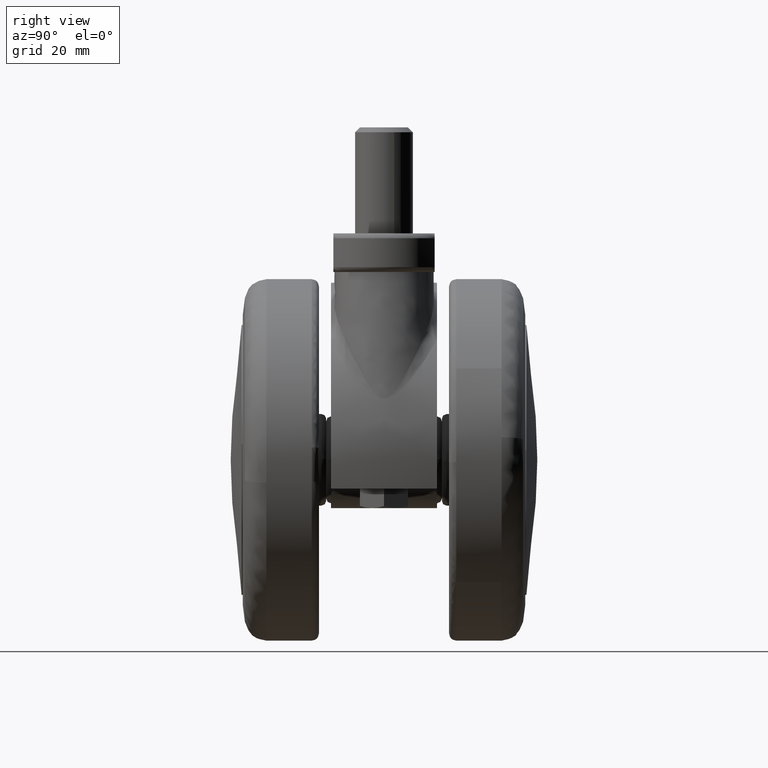
[diagram: clean part render]
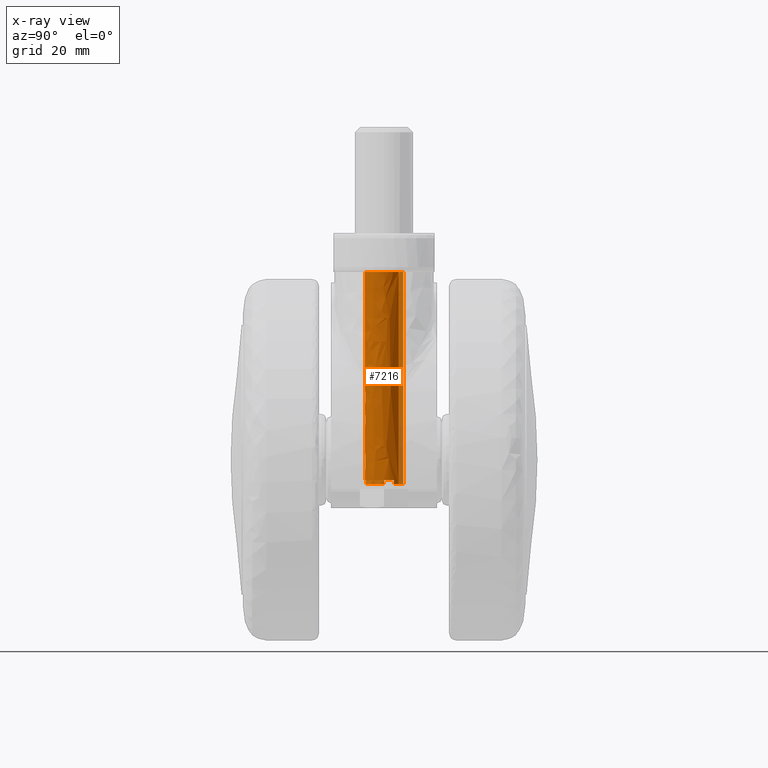
[diagram: x-ray — body ghosted, one internal face saturated and labeled with its STEP entity id]
A machine part, right view, then the same camera in x-ray: the body is ghosted and one INTERNAL B-rep face — a face not visible from any outside direction — is saturated and labeled: STEP entity #7216.
In plain terms, the highlighted face is a freeform B-spline surface patch.
Its self-contained STEP definition (entity closure, byte-faithful):
#6980=CARTESIAN_POINT('',(22.603179484488194,3.037014417407290,40.100000000000001));
#6981=CARTESIAN_POINT('',(23.920511686677187,1.907862002674398,40.100000000000009));
#6982=CARTESIAN_POINT('',(23.996192886327432,0.174477549461344,40.100000000000009));
#6983=CARTESIAN_POINT('',(24.170670435788775,-3.821715336866087,40.100000000000001));
#6984=CARTESIAN_POINT('',(20.174477549461340,-3.996192886327430,40.100000000000009));
#6985=CARTESIAN_POINT('',(16.178284663133912,-4.170670435788773,40.100000000000001));
#6986=CARTESIAN_POINT('',(16.003807113672568,-0.174477549461344,40.100000000000009));
#6987=CARTESIAN_POINT('',(15.829329564211232,3.821715336866087,40.100000000000001));
#6988=CARTESIAN_POINT('',(19.825522450538660,3.996192886327430,40.100000000000009));
#6989=CARTESIAN_POINT('',(22.603179484488194,3.037014417407290,-6.127500000000005));
#6990=CARTESIAN_POINT('',(23.920511686677187,1.907862002674398,-6.127500000000006));
#6991=CARTESIAN_POINT('',(23.996192886327432,0.174477549461344,-6.127500000000005));
#6992=CARTESIAN_POINT('',(24.170670435788775,-3.821715336866087,-6.127500000000005));
#6993=CARTESIAN_POINT('',(20.174477549461340,-3.996192886327430,-6.127500000000005));
#6994=CARTESIAN_POINT('',(16.178284663133912,-4.170670435788773,-6.127500000000005));
#6995=CARTESIAN_POINT('',(16.003807113672568,-0.174477549461344,-6.127500000000005));
#6996=CARTESIAN_POINT('',(15.829329564211232,3.821715336866087,-6.127500000000005));
#6997=CARTESIAN_POINT('',(19.825522450538660,3.996192886327430,-6.127500000000005));
#7005=(BOUNDED_SURFACE()B_SPLINE_SURFACE(2,1,((#6980,#6989),(#6981,#6990),(#6982,#6991),(#6983,#6992),(#6984,#6993),(#6985,#6994),(#6986,#6995),(#6987,#6996),(#6988,#6997)),.UNSPECIFIED.,.F.,.F.,.U.)B_SPLINE_SURFACE_WITH_KNOTS((3,2,2,2,3),(2,2),(0.0,3.446256838944149,10.073673836913670,16.701090834883189,23.328507832852701),(0.0,46.227500000000020),.UNSPECIFIED.)GEOMETRIC_REPRESENTATION_ITEM()RATIONAL_B_SPLINE_SURFACE(((0.853787705168325,0.853787705168325),(0.847695526217005,0.847695526217005),(1.0,1.0),(0.707106781186548,0.707106781186548),(1.0,1.0),(0.707106781186548,0.707106781186548),(1.0,1.0),(0.707106781186548,0.707106781186548),(1.0,1.0)))REPRESENTATION_ITEM('')SURFACE());
#7006=CARTESIAN_POINT('',(22.603179484484180,3.037014417410734,-4.999999999999999));
#7007=VERTEX_POINT('',#7006);
#7008=CARTESIAN_POINT('',(23.450066424360351,2.024115033169200,-5.0));
#7009=VERTEX_POINT('',#7008);
#7010=CARTESIAN_POINT('',(22.603179484484187,3.037014417410734,-4.999999999999999));
#7011=CARTESIAN_POINT('',(23.111367996836709,2.601420202902212,-5.000000000000001));
#7012=CARTESIAN_POINT('',(23.450066424360330,2.024115033169190,-5.0));
#7020=(BOUNDED_CURVE()B_SPLINE_CURVE(2,(#7010,#7011,#7012),.UNSPECIFIED.,.F.,.U.)B_SPLINE_CURVE_WITH_KNOTS((3,3),(0.838826426035904,1.0),.UNSPECIFIED.)CURVE()GEOMETRIC_REPRESENTATION_ITEM()RATIONAL_B_SPLINE_CURVE((0.942228882933247,0.957374106159129,1.0))REPRESENTATION_ITEM(''));
#7021=EDGE_CURVE('',#7007,#7009,#7020,.T.);
#7022=ORIENTED_EDGE('',*,*,#7021,.F.);
#7023=CARTESIAN_POINT('',(22.603176855445980,3.037016670889109,39.0));
#7024=VERTEX_POINT('',#7023);
#7025=CARTESIAN_POINT('',(22.603176855445980,3.037016670889109,39.0));
#7026=CARTESIAN_POINT('',(22.603179484484180,3.037014417410734,-4.999999999999999));
#7027=QUASI_UNIFORM_CURVE('',1,(#7025,#7026),.UNSPECIFIED.,.F.,.U.);
#7028=EDGE_CURVE('',#7024,#7007,#7027,.T.);
#7029=ORIENTED_EDGE('',*,*,#7028,.F.);
#7030=CARTESIAN_POINT('',(24.0,0.0,39.0));
#7031=VERTEX_POINT('',#7030);
#7032=CARTESIAN_POINT('',(24.0,0.0,39.0));
#7033=CARTESIAN_POINT('',(24.0,1.839730625046044,38.999999999999986));
#7034=CARTESIAN_POINT('',(22.603176855445973,3.037016670889109,38.999999999999993));
#7042=(BOUNDED_CURVE()B_SPLINE_CURVE(2,(#7032,#7033,#7034),.UNSPECIFIED.,.F.,.U.)B_SPLINE_CURVE_WITH_KNOTS((3,3),(0.0,0.136589111455534),.UNSPECIFIED.)CURVE()GEOMETRIC_REPRESENTATION_ITEM()RATIONAL_B_SPLINE_CURVE((1.0,0.839975901963677,0.854812198825391))REPRESENTATION_ITEM(''));
#7043=EDGE_CURVE('',#7031,#7024,#7042,.T.);
#7044=ORIENTED_EDGE('',*,*,#7043,.F.);
#7045=CARTESIAN_POINT('',(16.0,0.0,39.0));
#7046=VERTEX_POINT('',#7045);
#7047=CARTESIAN_POINT('',(16.0,0.0,39.0));
#7048=CARTESIAN_POINT('',(15.999999999999998,-4.000000000000000,39.000000000000007));
#7049=CARTESIAN_POINT('',(20.0,-4.0,39.0));
#7050=CARTESIAN_POINT('',(23.999999999999996,-4.000000000000000,39.000000000000007));
#7051=CARTESIAN_POINT('',(24.0,0.0,39.0));
#7059=(BOUNDED_CURVE()B_SPLINE_CURVE(2,(#7047,#7048,#7049,#7050,#7051),.UNSPECIFIED.,.F.,.U.)B_SPLINE_CURVE_WITH_KNOTS((3,2,3),(0.500000000000000,0.750000000000000,1.0),.UNSPECIFIED.)CURVE()GEOMETRIC_REPRESENTATION_ITEM()RATIONAL_B_SPLINE_CURVE((1.0,0.707106781186548,1.0,0.707106781186548,1.0))REPRESENTATION_ITEM(''));
#7060=EDGE_CURVE('',#7046,#7031,#7059,.T.);
#7061=ORIENTED_EDGE('',*,*,#7060,.F.);
#7062=CARTESIAN_POINT('',(19.825522450356001,3.996192886319456,39.0));
#7063=VERTEX_POINT('',#7062);
#7064=CARTESIAN_POINT('',(19.825522450356001,3.996192886319455,39.0));
#7065=CARTESIAN_POINT('',(16.000000000000004,3.829166968668858,39.000000000000007));
#7066=CARTESIAN_POINT('',(16.0,0.0,39.0));
#7074=(BOUNDED_CURVE()B_SPLINE_CURVE(2,(#7064,#7065,#7066),.UNSPECIFIED.,.F.,.U.)B_SPLINE_CURVE_WITH_KNOTS((3,3),(0.257645461446137,0.500000000000000),.UNSPECIFIED.)CURVE()GEOMETRIC_REPRESENTATION_ITEM()RATIONAL_B_SPLINE_CURVE((0.982633425852628,0.716063996435640,1.0))REPRESENTATION_ITEM(''));
#7075=EDGE_CURVE('',#7063,#7046,#7074,.T.);
#7076=ORIENTED_EDGE('',*,*,#7075,.F.);
#7077=CARTESIAN_POINT('',(19.825522450530720,3.996192886327084,-4.999999999999999));
#7078=VERTEX_POINT('',#7077);
#7079=CARTESIAN_POINT('',(19.825522450356001,3.996192886319456,39.0));
#7080=CARTESIAN_POINT('',(19.825522450530720,3.996192886327084,-4.999999999999999));
#7081=QUASI_UNIFORM_CURVE('',1,(#7079,#7080),.UNSPECIFIED.,.F.,.U.);
#7082=EDGE_CURVE('',#7063,#7078,#7081,.T.);
#7083=ORIENTED_EDGE('',*,*,#7082,.T.);
#7084=CARTESIAN_POINT('',(16.549933575639699,2.024115033169200,-5.0));
#7085=VERTEX_POINT('',#7084);
#7086=CARTESIAN_POINT('',(16.549933575639681,2.024115033169212,-5.0));
#7087=CARTESIAN_POINT('',(17.651234169029905,3.901261409793176,-4.999999999999999));
#7088=CARTESIAN_POINT('',(19.825522450530720,3.996192886327084,-4.999999999999999));
#7096=(BOUNDED_CURVE()B_SPLINE_CURVE(2,(#7086,#7087,#7088),.UNSPECIFIED.,.F.,.U.)B_SPLINE_CURVE_WITH_KNOTS((3,3),(0.0,0.478173893076030),.UNSPECIFIED.)CURVE()GEOMETRIC_REPRESENTATION_ITEM()RATIONAL_B_SPLINE_CURVE((1.0,0.873536404868235,0.988959168202658))REPRESENTATION_ITEM(''));
#7097=EDGE_CURVE('',#7085,#7078,#7096,.T.);
#7098=ORIENTED_EDGE('',*,*,#7097,.F.);
#7099=CARTESIAN_POINT('',(16.549933575639699,2.024115033169200,-4.200000000000000));
#7100=VERTEX_POINT('',#7099);
#7101=CARTESIAN_POINT('',(16.549933575639699,2.024115033169200,-4.200000000000000));
#7102=CARTESIAN_POINT('',(16.549933575639699,2.024115033169200,-5.0));
#7103=QUASI_UNIFORM_CURVE('',1,(#7101,#7102),.UNSPECIFIED.,.F.,.U.);
#7104=EDGE_CURVE('',#7100,#7085,#7103,.T.);
#7105=ORIENTED_EDGE('',*,*,#7104,.F.);
#7106=CARTESIAN_POINT('',(16.0,0.0,-4.200000000000000));
#7107=VERTEX_POINT('',#7106);
#7108=CARTESIAN_POINT('',(16.0,0.0,-4.200000000000000));
#7109=CARTESIAN_POINT('',(15.999999999999998,1.086763482564792,-4.200000000000000));
#7110=CARTESIAN_POINT('',(16.549933575639681,2.024115033169212,-4.200000000000000));
#7118=(BOUNDED_CURVE()B_SPLINE_CURVE(2,(#7108,#7109,#7110),.UNSPECIFIED.,.F.,.U.)CURVE()GEOMETRIC_REPRESENTATION_ITEM()QUASI_UNIFORM_CURVE()RATIONAL_B_SPLINE_CURVE((1.0,0.965017255309479,1.0))REPRESENTATION_ITEM(''));
#7119=EDGE_CURVE('',#7107,#7100,#7118,.T.);
#7120=ORIENTED_EDGE('',*,*,#7119,.F.);
#7121=CARTESIAN_POINT('',(16.0,0.0,-5.0));
#7122=VERTEX_POINT('',#7121);
#7123=CARTESIAN_POINT('',(16.0,0.0,-4.200000000000000));
#7124=CARTESIAN_POINT('',(16.0,0.0,-5.0));
#7125=QUASI_UNIFORM_CURVE('',1,(#7123,#7124),.UNSPECIFIED.,.F.,.U.);
#7126=EDGE_CURVE('',#7107,#7122,#7125,.T.);
#7127=ORIENTED_EDGE('',*,*,#7126,.T.);
#7128=CARTESIAN_POINT('',(18.632064327445502,-3.758823219539975,-5.0));
#7129=VERTEX_POINT('',#7128);
#7130=CARTESIAN_POINT('',(18.632064327445502,-3.758823219539976,-5.0));
#7131=CARTESIAN_POINT('',(15.999999999999998,-2.800945055104374,-5.000000000000001));
#7132=CARTESIAN_POINT('',(16.0,0.0,-5.0));
#7140=(BOUNDED_CURVE()B_SPLINE_CURVE(2,(#7130,#7131,#7132),.UNSPECIFIED.,.F.,.U.)CURVE()GEOMETRIC_REPRESENTATION_ITEM()QUASI_UNIFORM_CURVE()RATIONAL_B_SPLINE_CURVE((1.0,0.819140988517430,1.0))REPRESENTATION_ITEM(''));
#7141=EDGE_CURVE('',#7129,#7122,#7140,.T.);
#7142=ORIENTED_EDGE('',*,*,#7141,.F.);
#7143=CARTESIAN_POINT('',(18.632064327445502,-3.758823219539975,-4.200000000000000));
#7144=VERTEX_POINT('',#7143);
#7145=CARTESIAN_POINT('',(18.632064327445502,-3.758823219539975,-4.200000000000000));
#7146=CARTESIAN_POINT('',(18.632064327445502,-3.758823219539975,-5.0));
#7147=QUASI_UNIFORM_CURVE('',1,(#7145,#7146),.UNSPECIFIED.,.F.,.U.);
#7148=EDGE_CURVE('',#7144,#7129,#7147,.T.);
#7149=ORIENTED_EDGE('',*,*,#7148,.F.);
#7150=CARTESIAN_POINT('',(21.367935672554999,-3.758823219539790,-4.200000000000000));
#7151=VERTEX_POINT('',#7150);
#7152=CARTESIAN_POINT('',(21.367935672554999,-3.758823219539793,-4.200000000000000));
#7153=CARTESIAN_POINT('',(20.000000000000284,-4.256651368126472,-4.199999999999999));
#7154=CARTESIAN_POINT('',(18.632064327445502,-3.758823219539976,-4.200000000000000));
#7162=(BOUNDED_CURVE()B_SPLINE_CURVE(2,(#7152,#7153,#7154),.UNSPECIFIED.,.F.,.U.)CURVE()GEOMETRIC_REPRESENTATION_ITEM()QUASI_UNIFORM_CURVE()RATIONAL_B_SPLINE_CURVE((1.0,0.939705804884971,1.0))REPRESENTATION_ITEM(''));
#7163=EDGE_CURVE('',#7151,#7144,#7162,.T.);
#7164=ORIENTED_EDGE('',*,*,#7163,.F.);
#7165=CARTESIAN_POINT('',(21.367935672554999,-3.758823219539790,-5.0));
#7166=VERTEX_POINT('',#7165);
#7167=CARTESIAN_POINT('',(21.367935672554999,-3.758823219539790,-4.200000000000000));
#7168=CARTESIAN_POINT('',(21.367935672554999,-3.758823219539790,-5.0));
#7169=QUASI_UNIFORM_CURVE('',1,(#7167,#7168),.UNSPECIFIED.,.F.,.U.);
#7170=EDGE_CURVE('',#7151,#7166,#7169,.T.);
#7171=ORIENTED_EDGE('',*,*,#7170,.T.);
#7172=CARTESIAN_POINT('',(24.0,8.085112E-015,-5.0));
#7173=VERTEX_POINT('',#7172);
#7174=CARTESIAN_POINT('',(24.0,0.0,-5.0));
#7175=CARTESIAN_POINT('',(23.999999999999996,-2.800945055103976,-5.0));
#7176=CARTESIAN_POINT('',(21.367935672554999,-3.758823219539793,-5.0));
#7184=(BOUNDED_CURVE()B_SPLINE_CURVE(2,(#7174,#7175,#7176),.UNSPECIFIED.,.F.,.U.)CURVE()GEOMETRIC_REPRESENTATION_ITEM()QUASI_UNIFORM_CURVE()RATIONAL_B_SPLINE_CURVE((1.0,0.819140988517468,1.0))REPRESENTATION_ITEM(''));
#7185=EDGE_CURVE('',#7173,#7166,#7184,.T.);
#7186=ORIENTED_EDGE('',*,*,#7185,.F.);
#7187=CARTESIAN_POINT('',(24.0,8.085112E-015,-4.200000000000000));
#7188=VERTEX_POINT('',#7187);
#7189=CARTESIAN_POINT('',(24.0,8.085112E-015,-4.200000000000000));
#7190=CARTESIAN_POINT('',(24.0,8.085112E-015,-5.0));
#7191=QUASI_UNIFORM_CURVE('',1,(#7189,#7190),.UNSPECIFIED.,.F.,.U.);
#7192=EDGE_CURVE('',#7188,#7173,#7191,.T.);
#7193=ORIENTED_EDGE('',*,*,#7192,.F.);
#7194=CARTESIAN_POINT('',(23.450066424360351,2.024115033169200,-4.200000000000000));
#7195=VERTEX_POINT('',#7194);
#7196=CARTESIAN_POINT('',(23.450066424360330,2.024115033169190,-4.200000000000000));
#7197=CARTESIAN_POINT('',(24.0,1.086763482564777,-4.200000000000000));
#7198=CARTESIAN_POINT('',(24.0,0.0,-4.200000000000000));
#7206=(BOUNDED_CURVE()B_SPLINE_CURVE(2,(#7196,#7197,#7198),.UNSPECIFIED.,.F.,.U.)CURVE()GEOMETRIC_REPRESENTATION_ITEM()QUASI_UNIFORM_CURVE()RATIONAL_B_SPLINE_CURVE((1.0,0.965017255309480,1.0))REPRESENTATION_ITEM(''));
#7207=EDGE_CURVE('',#7195,#7188,#7206,.T.);
#7208=ORIENTED_EDGE('',*,*,#7207,.F.);
#7209=CARTESIAN_POINT('',(23.450066424360351,2.024115033169200,-4.200000000000000));
#7210=CARTESIAN_POINT('',(23.450066424360351,2.024115033169200,-5.0));
#7211=QUASI_UNIFORM_CURVE('',1,(#7209,#7210),.UNSPECIFIED.,.F.,.U.);
#7212=EDGE_CURVE('',#7195,#7009,#7211,.T.);
#7213=ORIENTED_EDGE('',*,*,#7212,.T.);
#7214=EDGE_LOOP('',(#7022,#7029,#7044,#7061,#7076,#7083,#7098,#7105,#7120,#7127,#7142,#7149,#7164,#7171,#7186,#7193,#7208,#7213));
#7215=FACE_OUTER_BOUND('',#7214,.T.);
#7216=ADVANCED_FACE('',(#7215),#7005,.T.);